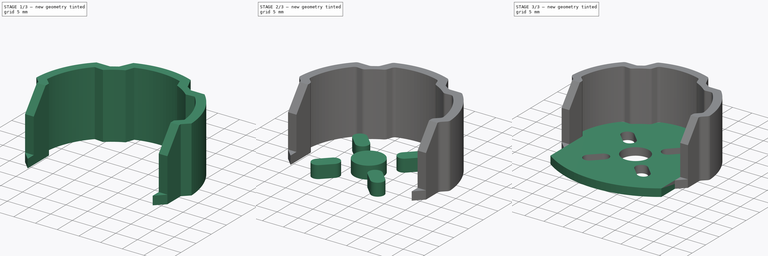
[diagram: build sequence overview — one tinted view per stage of 3, left to right]
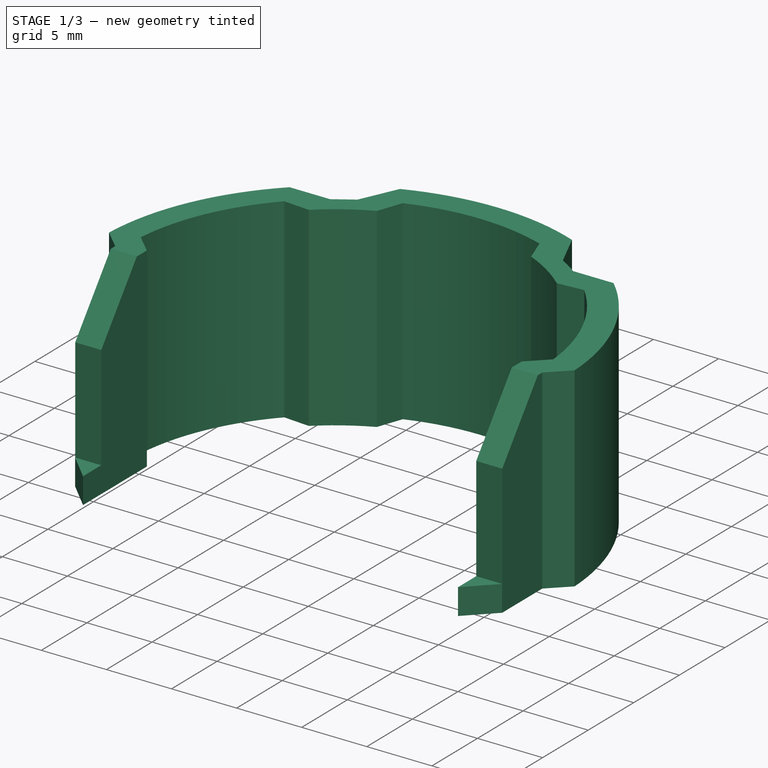
[diagram: stage 1 of 3 — iso view after this stage's code; geometry added in this stage tinted green]
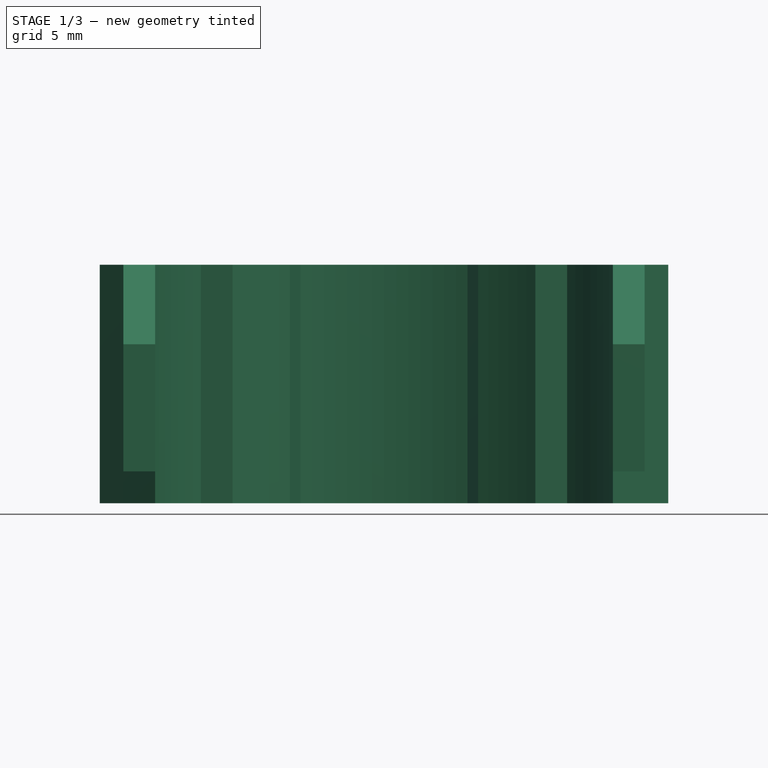
[diagram: stage 1 of 3 — front view after this stage's code; geometry added in this stage tinted green]
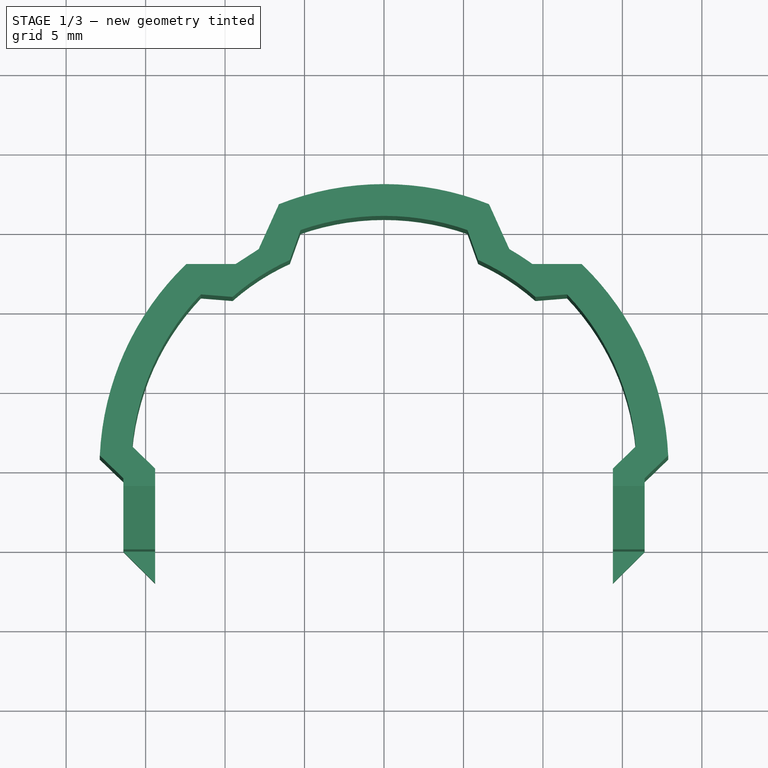
[diagram: stage 1 of 3 — top view after this stage's code; geometry added in this stage tinted green]
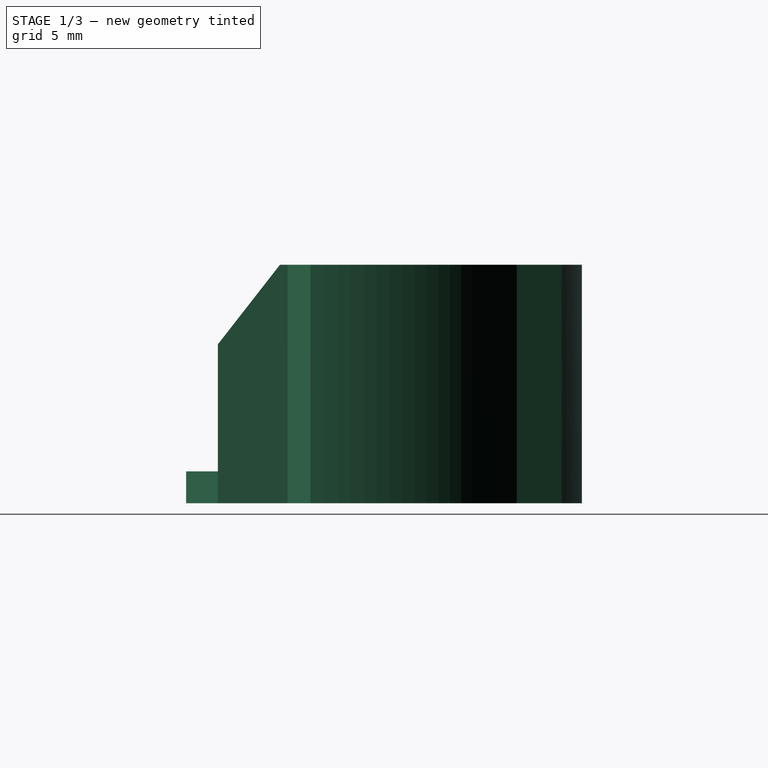
[diagram: stage 1 of 3 — right view after this stage's code; geometry added in this stage tinted green]
FCSTD DOCUMENT  (FreeCAD 0.15R4671 (Git))
Label: QAV250-Motor-Guard
License: All rights reserved
LicenseURL: http://en.wikipedia.org/wiki/All_rights_reserved
objects: Sketcher::SketchObject×4, PartDesign::Pad×4, Part::Cut×2, Part::Fillet×2
note: 16 computed .brp shape members not serialized (recipe doc carries the construction recipe); baked Part::Feature solids carry a one-line shape summary decoded from their .brp

FEATURE [Sketcher::SketchObject] Sketch002  label="Walls Taper Sketch"
  Placement = pos=(0,0,0) rot=(0.57735,0.57735,0.57735;2.0944rad)
  sketch-geometry (5):
    g0: LineSegment StartX=-8 StartY=2 StartZ=0 EndX=-5 EndY=2 EndZ=0
    g1: LineSegment StartX=-8 StartY=2 StartZ=0 EndX=-8 EndY=15 EndZ=0
    g2: LineSegment StartX=-8 StartY=15 StartZ=0 EndX=-1.1 EndY=15 EndZ=0
    g3: LineSegment StartX=-5 StartY=10 StartZ=0 EndX=-1.1 EndY=15 EndZ=0
    g4: LineSegment StartX=-5 StartY=10 StartZ=0 EndX=-5 EndY=2 EndZ=0
  constraints (15):
    c: Horizontal(g0)
    c: Vertical(g1)
    c: Coincident(g2,g1)
    c: Horizontal(g2)
    c: Coincident(g4,g3)
    c: Coincident(g4,g0)
    c: Vertical(g4)
    c: DistanceY(g-1,g0) = 2
    c: DistanceX(g0,g0) = 3
    c: DistanceX(g-1,g0) = -5
    c: Coincident(g2,g3)
    c: DistanceY(g1,g0) = -13
    c: DistanceX(g1,g2) = 6.9
    c: DistanceY(g0,g3) = 8
    c: Coincident(g0,g1)
FEATURE [PartDesign::Pad] Pad002  label="Walls Taper Pad"
  Length = 33
  Length2 = 100
  Midplane = true
  Placement = pos=(0,0,0) rot=(0.57735,0.57735,0.57735;2.0944rad)
  Sketch = -> Sketch002
  Type = 0
FEATURE [Sketcher::SketchObject] Sketch003  label="Walls"
  sketch-geometry (49):
    g0: LineSegment StartX=-14.4 StartY=-7 StartZ=0 EndX=-14.4 EndY=0 EndZ=0
    g1: LineSegment StartX=14.4 StartY=-7 StartZ=0 EndX=14.4 EndY=0 EndZ=0
    g2: ArcOfCircle [constr] CenterX=0 CenterY=0 CenterZ=0 NormalX=0 NormalY=0 NormalZ=1 Radius=14.4 StartAngle=0 EndAngle=3.14159
    g3: ArcOfCircle [constr] CenterX=0 CenterY=0 CenterZ=0 NormalX=0 NormalY=0 NormalZ=1 Radius=15.9 StartAngle=0 EndAngle=3.14159
    g4: LineSegment StartX=-11.5198 StartY=10.9592 StartZ=0 EndX=-9.5263 EndY=10.7986 EndZ=0
    g5: LineSegment StartX=-5.92373 StartY=13.1251 StartZ=0 EndX=-5.25 EndY=15.0082 EndZ=0
    g6: LineSegment StartX=5.25 StartY=15.0082 StartZ=0 EndX=5.92373 EndY=13.1251 EndZ=0
    g7: LineSegment StartX=11.5198 StartY=10.9592 StartZ=0 EndX=9.5263 EndY=10.7986 EndZ=0
    g8: LineSegment [constr] StartX=-9.5263 StartY=10.7986 StartZ=0 EndX=-5.92373 EndY=13.1251 EndZ=0
    g9: LineSegment [constr] StartX=5.92373 StartY=13.1251 StartZ=0 EndX=9.5263 EndY=10.7986 EndZ=0
    g10: ArcOfCircle CenterX=0 CenterY=0 CenterZ=0 NormalX=0 NormalY=0 NormalZ=1 Radius=15.9 StartAngle=2.38113 EndAngle=3.05414
    g11: ArcOfCircle CenterX=0 CenterY=0 CenterZ=0 NormalX=0 NormalY=0 NormalZ=1 Radius=14.4 StartAngle=1.99475 EndAngle=2.29368
    g12: ArcOfCircle CenterX=0 CenterY=0 CenterZ=0 NormalX=0 NormalY=0 NormalZ=1 Radius=15.9 StartAngle=1.23429 EndAngle=1.9073
    g13: ArcOfCircle CenterX=0 CenterY=0 CenterZ=0 NormalX=0 NormalY=0 NormalZ=1 Radius=14.4 StartAngle=0.847914 EndAngle=1.14684
    g14: ArcOfCircle CenterX=0 CenterY=0 CenterZ=0 NormalX=0 NormalY=0 NormalZ=1 Radius=15.9 StartAngle=0.0874536 EndAngle=0.760461
    g15: LineSegment StartX=14.4 StartY=0 StartZ=0 EndX=15.8392 EndY=1.38874 EndZ=0
    g16: LineSegment [constr] StartX=-14.4 StartY=0 StartZ=0 EndX=-15.9 EndY=0 EndZ=0
    g17: LineSegment [constr] StartX=14.4 StartY=0 StartZ=0 EndX=15.9 EndY=0 EndZ=0
    g18: LineSegment StartX=-15.8392 StartY=1.38874 StartZ=0 EndX=-14.4 EndY=0 EndZ=0
    g19: LineSegment [constr] StartX=-15.8392 StartY=1.38874 StartZ=0 EndX=-11.5198 EndY=10.9592 EndZ=0
    g20: LineSegment [constr] StartX=-5.25 StartY=15.0082 StartZ=0 EndX=5.25 EndY=15.0082 EndZ=0
    g21: LineSegment [constr] StartX=11.5198 StartY=10.9592 StartZ=0 EndX=15.8392 EndY=1.38874 EndZ=0
    g22: LineSegment [constr] StartX=-14.4 StartY=-7 StartZ=0 EndX=14.4 EndY=-7 EndZ=0
    g23: ArcOfCircle [constr] CenterX=0 CenterY=0 CenterZ=0 NormalX=0 NormalY=0 NormalZ=1 Radius=17.9 StartAngle=0 EndAngle=3.14159
    g24: LineSegment [constr] StartX=-15.9 StartY=0 StartZ=0 EndX=-17.9 EndY=0 EndZ=0
    g25: LineSegment [constr] StartX=15.9 StartY=0 StartZ=0 EndX=17.9 EndY=0 EndZ=0
    g26: LineSegment StartX=-14.4 StartY=-7 StartZ=0 EndX=-16.4 EndY=-5.01126 EndZ=0
    g27: LineSegment StartX=14.4 StartY=-7 StartZ=0 EndX=16.4 EndY=-5.01126 EndZ=0
    g28: ArcOfCircle CenterX=0 CenterY=0 CenterZ=0 NormalX=0 NormalY=0 NormalZ=1 Radius=17.9 StartAngle=2.3394 EndAngle=3.09587
    g29: ArcOfCircle CenterX=0 CenterY=0 CenterZ=0 NormalX=0 NormalY=0 NormalZ=1 Radius=17.9 StartAngle=1.19256 EndAngle=1.94904
    g30: ArcOfCircle CenterX=0 CenterY=0 CenterZ=0 NormalX=0 NormalY=0 NormalZ=1 Radius=17.9 StartAngle=0.0457179 EndAngle=0.802196
    g31: ArcOfCircle CenterX=0 CenterY=0 CenterZ=0 NormalX=0 NormalY=0 NormalZ=1 Radius=15.9 StartAngle=0.942977 EndAngle=1.05178
    g32: LineSegment StartX=-12.4428 StartY=12.868 StartZ=0 EndX=-9.33937 EndY=12.868 EndZ=0
    g33: LineSegment StartX=-7.88686 StartY=13.8061 StartZ=0 EndX=-6.6102 EndY=16.6348 EndZ=0
    g34: LineSegment StartX=6.6102 StartY=16.6348 StartZ=0 EndX=7.88686 EndY=13.8061 EndZ=0
    g35: LineSegment StartX=9.33937 StartY=12.868 StartZ=0 EndX=12.4428 EndY=12.868 EndZ=0
    g36: LineSegment [constr] StartX=-6.6102 StartY=16.6348 StartZ=0 EndX=6.6102 EndY=16.6348 EndZ=0
    g37: LineSegment [constr] StartX=-17.8813 StartY=0.818065 StartZ=0 EndX=-12.4428 EndY=12.868 EndZ=0
    g38: LineSegment [constr] StartX=12.4428 StartY=12.868 StartZ=0 EndX=17.8813 EndY=0.818065 EndZ=0
    g39: LineSegment StartX=-16.4 StartY=-5.01126 StartZ=0 EndX=-16.4 EndY=-0.61126 EndZ=0
    g40: LineSegment StartX=-16.4 StartY=-0.61126 StartZ=0 EndX=-17.8813 EndY=0.818065 EndZ=0
    g41: LineSegment StartX=17.8813 StartY=0.818065 StartZ=0 EndX=16.4 EndY=-0.61126 EndZ=0
    g42: LineSegment StartX=16.4 StartY=-5.01126 StartZ=0 EndX=16.4 EndY=-0.61126 EndZ=0
    g43: LineSegment StartX=-9.33937 StartY=12.868 StartZ=0 EndX=-7.88686 EndY=13.8061 EndZ=0
    g44: LineSegment [constr] StartX=7.88686 StartY=13.8061 StartZ=0 EndX=9.33937 EndY=12.868 EndZ=0
    g45: LineSegment [constr] StartX=-9.5263 StartY=10.7986 StartZ=0 EndX=-9.33937 EndY=12.868 EndZ=0
    g46: LineSegment [constr] StartX=-7.88686 StartY=13.8061 StartZ=0 EndX=-5.92373 EndY=13.1251 EndZ=0
    g47: LineSegment [constr] StartX=5.92373 StartY=13.1251 StartZ=0 EndX=7.88686 EndY=13.8061 EndZ=0
    g48: LineSegment [constr] StartX=9.33937 StartY=12.868 StartZ=0 EndX=9.5263 EndY=10.7986 EndZ=0
  constraints (159):
    c: Vertical(g0)
    c: Vertical(g1)
    c: Equal(g0,g1)
    c: Coincident(g2,g0)
    c: Coincident(g2,g1)
    c: PointOnObject(g18,g3)
    c: PointOnObject(g4,g3)
    c: PointOnObject(g4,g2)
    c: PointOnObject(g5,g2)
    c: PointOnObject(g5,g3)
    c: PointOnObject(g6,g3)
    c: PointOnObject(g6,g2)
    c: PointOnObject(g7,g3)
    c: PointOnObject(g14,g3)
    c: PointOnObject(g7,g2)
    c: Equal(g5,g6)
    c: Equal(g6,g7)
    c: Coincident(g8,g4)
    c: Coincident(g8,g5)
    c: Coincident(g9,g6)
    c: Coincident(g9,g7)
    c: Coincident(g11,g4)
    c: Coincident(g11,g5)
    c: Coincident(g12,g5)
    c: Coincident(g13,g6)
    c: Coincident(g13,g7)
    c: PointOnObject(g15,g2)
    c: Equal(g15,g7)
    c: Equal(g7,g4)
    c: Horizontal(g16)
    c: Horizontal(g17)
    c: DistanceY(g-1,g15) = 0
    c: Coincident(g1,g15)
    c: Coincident(g1,g17)
    c: Coincident(g3,g17)
    c: Coincident(g3,g16)
    c: Coincident(g0,g16)
    c: Coincident(g0,g18)
    c: DistanceX(g0,g3) = -1.5
    c: Equal(g16,g17)
    c: DistanceY(g0,g0) = 7
    c: DistanceX(g5,g6) = 10.5
    c: Equal(g10,g14)
    c: Equal(g14,g12)
    c: DistanceX(g-1,g1) = 14.4
    c: Coincident(g4,g10)
    c: Coincident(g7,g14)
    c: Coincident(g14,g15)
    c: Coincident(g12,g6)
    c: Equal(g4,g18)
    c: Equal(g18,g5)
    c: Equal(g5,g6)
    c: Equal(g6,g7)
    c: Equal(g7,g15)
    c: Distance(g4) = 2
    c: Coincident(g10,g18)
    c: Coincident(g19,g10)
    c: Coincident(g4,g19)
    c: Coincident(g20,g5)
    c: Coincident(g20,g6)
    c: Horizontal(g20)
    c: Coincident(g21,g7)
    c: Coincident(g21,g14)
    c: Equal(g21,g19)
    c: Equal(g19,g20)
    c: Coincident(g22,g0)
    c: Coincident(g22,g1)
    c: Horizontal(g22)
    c: Coincident(g2,g3)
    c: Coincident(g2,g10)
    c: Coincident(g2,g11)
    c: Coincident(g2,g12)
    c: Coincident(g2,g13)
    c: Coincident(g2,g14)
    c: Equal(g20,g19)
    c: Equal(g19,g21)
    c: PointOnObject(g23,g-1)
    c: Coincident(g23,g-1)
    c: Coincident(g24,g3)
    c: Horizontal(g24)
    c: Coincident(g24,g23)
    c: Distance(g24) = 2
    c: Coincident(g25,g3)
    c: Coincident(g25,g23)
    c: Horizontal(g25)
    c: Coincident(g27,g1)
    c: Equal(g26,g27)
    c: Coincident(g0,g26)
    c: DistanceX(g0,g26) = -2
    c: Coincident(g28,g-1)
    c: PointOnObject(g28,g23)
    c: PointOnObject(g29,g23)
    c: Coincident(g30,g-1)
    c: PointOnObject(g30,g23)
    c: Coincident(g2,g23)
    c: Coincident(g2,g29)
    c: Coincident(g31,g-1)
    c: PointOnObject(g31,g3)
    c: Coincident(g32,g28)
    c: Coincident(g33,g29)
    c: Coincident(g34,g31)
    c: Coincident(g29,g34)
    c: Coincident(g35,g30)
    c: Horizontal(g35)
    c: Coincident(g31,g35)
    c: Coincident(g36,g29)
    c: Coincident(g36,g29)
    c: Horizontal(g36)
    c: Coincident(g37,g28)
    c: Coincident(g37,g28)
    c: Coincident(g38,g30)
    c: Coincident(g38,g30)
    c: Equal(g37,g36)
    c: Equal(g36,g38)
    c: Coincident(g39,g26)
    c: Vertical(g39)
    c: DistanceY(g39,g10) = 2
    c: Coincident(g40,g39)
    c: Coincident(g40,g28)
    c: Coincident(g42,g27)
    c: Coincident(g42,g41)
    c: Vertical(g42)
    c: DistanceY(g14,g41) = -2
    c: Parallel(g40,g18)
    c: Parallel(g15,g41)
    c: DistanceX(g27,g1) = -2
    c: Coincident(g41,g30)
    c: Coincident(g44,g31)
    c: Coincident(g44,g31)
    c: Coincident(g45,g4)
    c: Coincident(g46,g5)
    c: Coincident(g47,g6)
    c: Coincident(g47,g31)
    c: Coincident(g48,g31)
    c: Equal(g45,g46)
    c: Equal(g46,g47)
    c: Equal(g47,g48)
    c: Equal(g32,g33)
    c: Equal(g33,g34)
    c: Equal(g34,g35)
    c: Equal(g45,g46)
    c: Equal(g46,g47)
    c: Equal(g47,g48)
    c: Equal(g32,g33)
    c: Equal(g33,g34)
    c: Equal(g34,g35)
    c: Coincident(g7,g48)
    c: Equal(g40,g41)
    c: Equal(g27,g26)
    c: Equal(g45,g46)
    c: Equal(g46,g47)
    c: Equal(g47,g48)
    c: Coincident(g32,g43)
    c: Coincident(g32,g45)
    c: Coincident(g33,g43)
    c: Coincident(g33,g46)
    c: PointOnObject(g32,g3)
    c: PointOnObject(g33,g3)
    c: Distance(g39) = 4.4
FEATURE [PartDesign::Pad] Pad003  label="Walls Pad"
  Length = 15
  Length2 = 100
  Sketch = -> Sketch003
  Type = 0
FEATURE [Part::Cut] Cut  label="Walls Cut"
  Base = -> Pad003
  Tool = -> Pad002
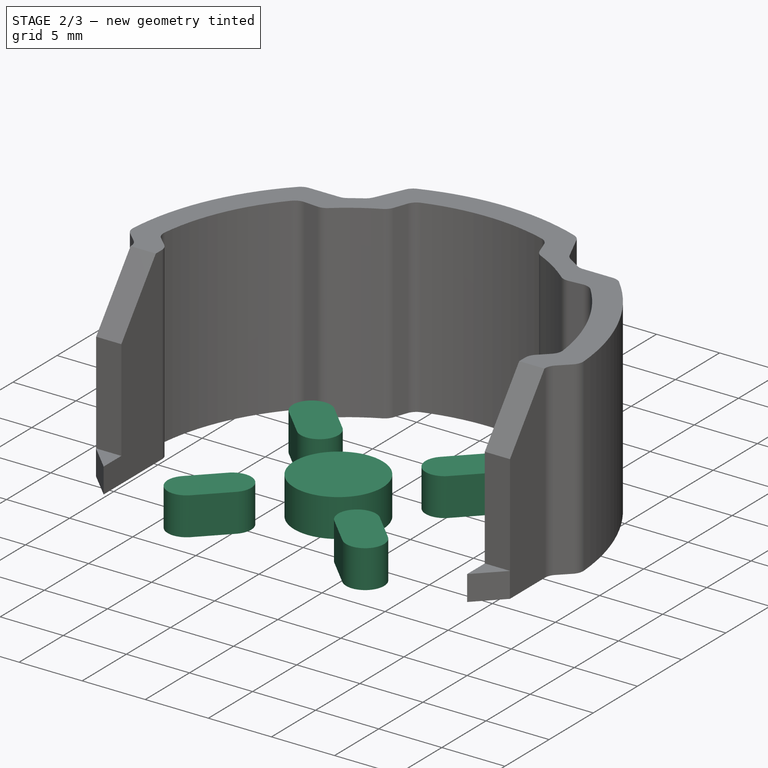
[diagram: stage 2 of 3 — iso view after this stage's code; geometry added in this stage tinted green]
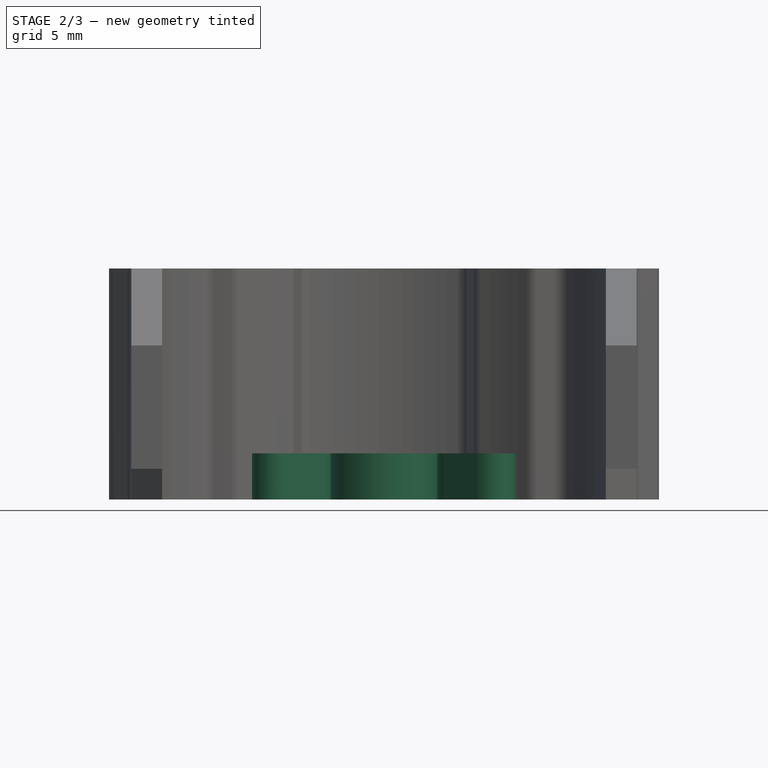
[diagram: stage 2 of 3 — front view after this stage's code; geometry added in this stage tinted green]
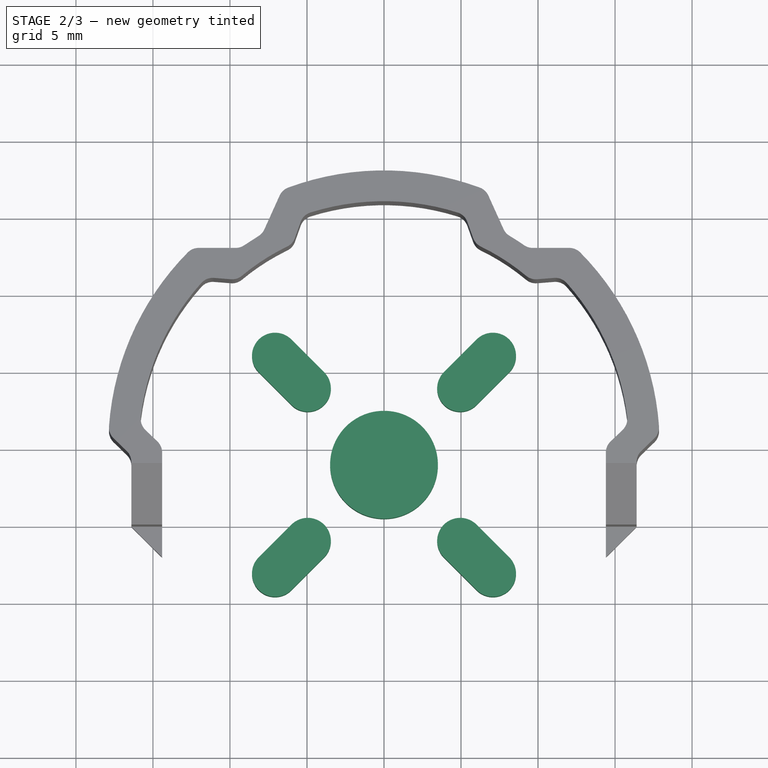
[diagram: stage 2 of 3 — top view after this stage's code; geometry added in this stage tinted green]
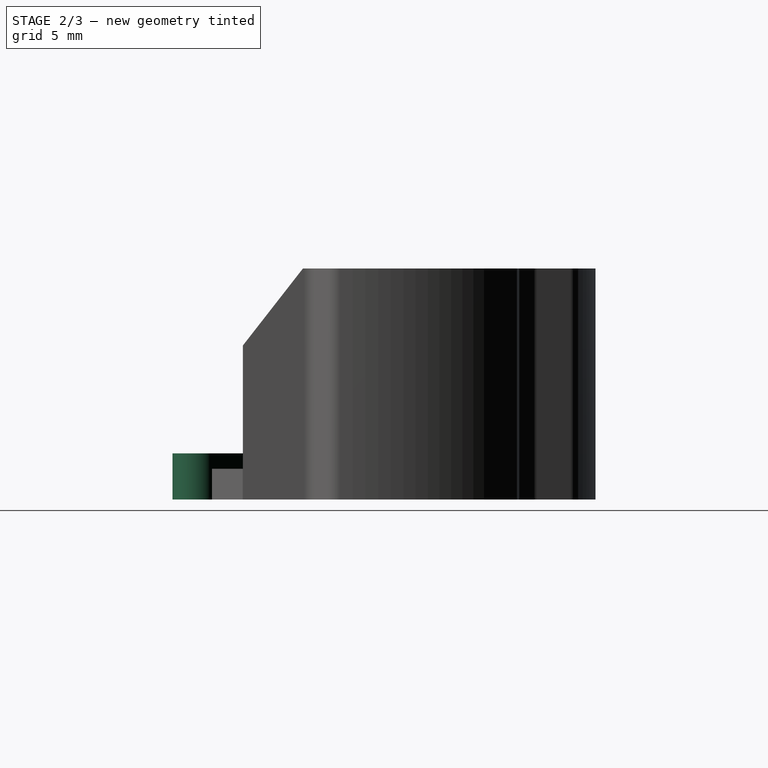
[diagram: stage 2 of 3 — right view after this stage's code; geometry added in this stage tinted green]
FEATURE [Sketcher::SketchObject] Sketch  label="Holes"
  sketch-geometry (48):
    g0: LineSegment StartX=-6.01041 StartY=-4.88909 StartZ=0 EndX=-8.13173 EndY=-7.01041 EndZ=0
    g1: LineSegment StartX=-3.88909 StartY=-7.01041 StartZ=0 EndX=-6.01041 EndY=-9.13173 EndZ=0
    g2: LineSegment [constr] StartX=-8.13173 StartY=-7.01041 StartZ=0 EndX=-6.01041 EndY=-9.13173 EndZ=0
    g3: ArcOfCircle CenterX=-4.94975 CenterY=-5.94975 CenterZ=0 NormalX=0 NormalY=0 NormalZ=1 Radius=1.5 StartAngle=5.49779 EndAngle=8.63938
    g4: ArcOfCircle CenterX=-7.07107 CenterY=-8.07107 CenterZ=0 NormalX=0 NormalY=0 NormalZ=1 Radius=1.5 StartAngle=2.35619 EndAngle=5.49779
    g5: LineSegment [constr] StartX=6.01041 StartY=7.13173 StartZ=0 EndX=8.13173 EndY=5.01041 EndZ=0
    g6: LineSegment [constr] StartX=-8.13173 StartY=5.01041 StartZ=0 EndX=-6.01041 EndY=7.13173 EndZ=0
    g7: LineSegment StartX=3.88909 StartY=-7.01041 StartZ=0 EndX=6.01041 EndY=-9.13173 EndZ=0
    g8: LineSegment StartX=6.01041 StartY=-4.88909 StartZ=0 EndX=8.13173 EndY=-7.01041 EndZ=0
    g9: LineSegment StartX=6.01041 StartY=2.88909 StartZ=0 EndX=8.13173 EndY=5.01041 EndZ=0
    g10: LineSegment StartX=3.88909 StartY=5.01041 StartZ=0 EndX=6.01041 EndY=7.13173 EndZ=0
    g11: LineSegment StartX=-8.13173 StartY=5.01041 StartZ=0 EndX=-6.01041 EndY=2.88909 EndZ=0
    g12: LineSegment StartX=-6.01041 StartY=7.13173 StartZ=0 EndX=-3.88909 EndY=5.01041 EndZ=0
    g13: ArcOfCircle CenterX=4.94975 CenterY=-5.94975 CenterZ=0 NormalX=0 NormalY=0 NormalZ=1 Radius=1.5 StartAngle=0.785398 EndAngle=3.92699
    g14: ArcOfCircle CenterX=7.07107 CenterY=-8.07107 CenterZ=0 NormalX=0 NormalY=0 NormalZ=1 Radius=1.5 StartAngle=3.92699 EndAngle=7.06858
    g15: ArcOfCircle CenterX=7.07107 CenterY=6.07107 CenterZ=0 NormalX=0 NormalY=0 NormalZ=1 Radius=1.5 StartAngle=5.49779 EndAngle=8.63938
    g16: ArcOfCircle CenterX=4.94975 CenterY=3.94975 CenterZ=0 NormalX=0 NormalY=0 NormalZ=1 Radius=1.5 StartAngle=2.35619 EndAngle=5.49779
    g17: ArcOfCircle CenterX=-4.94975 CenterY=3.94975 CenterZ=0 NormalX=0 NormalY=0 NormalZ=1 Radius=1.5 StartAngle=3.92699 EndAngle=7.06858
    g18: ArcOfCircle CenterX=-7.07107 CenterY=6.07107 CenterZ=0 NormalX=0 NormalY=0 NormalZ=1 Radius=1.5 StartAngle=0.785398 EndAngle=3.92699
    g19: LineSegment [constr] StartX=8.13173 StartY=-7.01041 StartZ=0 EndX=6.01041 EndY=-9.13173 EndZ=0
    g20: LineSegment [constr] StartX=-8.13173 StartY=7.13173 StartZ=0 EndX=8.13173 EndY=-9.13173 EndZ=0
    g21: LineSegment [constr] StartX=-8.13173 StartY=-9.13173 StartZ=0 EndX=8.13173 EndY=7.13173 EndZ=0
    g22: GeomPoint [constr] X=-3.88909 Y=2.88909 Z=0
    g23: GeomPoint [constr] X=3.88909 Y=2.88909 Z=0
    g24: GeomPoint [constr] X=3.88909 Y=-4.88909 Z=0
    g25: GeomPoint [constr] X=-3.88909 Y=-4.88909 Z=0
    g26: LineSegment [constr] StartX=-8.13173 StartY=-9.13173 StartZ=0 EndX=8.13173 EndY=-9.13173 EndZ=0
    g27: LineSegment [constr] StartX=-8.13173 StartY=-9.13173 StartZ=0 EndX=-8.13173 EndY=7.13173 EndZ=0
    g28: LineSegment [constr] StartX=-8.13173 StartY=7.13173 StartZ=0 EndX=8.13173 EndY=7.13173 EndZ=0
    g29: LineSegment [constr] StartX=8.13173 StartY=7.13173 StartZ=0 EndX=8.13173 EndY=-9.13173 EndZ=0
    g30: LineSegment [constr] StartX=-6.01041 StartY=-4.88909 StartZ=0 EndX=-3.88909 EndY=-7.01041 EndZ=0
    g31: LineSegment [constr] StartX=3.88909 StartY=-7.01041 StartZ=0 EndX=6.01041 EndY=-4.88909 EndZ=0
    g32: LineSegment [constr] StartX=-6.01041 StartY=2.88909 StartZ=0 EndX=-3.88909 EndY=5.01041 EndZ=0
    g33: LineSegment [constr] StartX=3.88909 StartY=5.01041 StartZ=0 EndX=6.01041 EndY=2.88909 EndZ=0
    g34: LineSegment [constr] StartX=-3.88909 StartY=-4.88909 StartZ=0 EndX=-3.88909 EndY=-9.13173 EndZ=0
    g35: LineSegment [constr] StartX=-3.88909 StartY=-4.88909 StartZ=0 EndX=-8.13173 EndY=-4.88909 EndZ=0
    g36: LineSegment [constr] StartX=-8.13173 StartY=-9.13173 StartZ=0 EndX=-3.88909 EndY=-4.88909 EndZ=0
    g37: LineSegment [constr] StartX=3.88909 StartY=-4.88909 StartZ=0 EndX=3.88909 EndY=-9.13173 EndZ=0
    g38: LineSegment [constr] StartX=3.88909 StartY=-4.88909 StartZ=0 EndX=8.13173 EndY=-4.88909 EndZ=0
    g39: LineSegment [constr] StartX=-3.88909 StartY=2.88909 StartZ=0 EndX=-8.13173 EndY=2.88909 EndZ=0
    g40: LineSegment [constr] StartX=-3.88909 StartY=2.88909 StartZ=0 EndX=-3.88909 EndY=7.13173 EndZ=0
    g41: LineSegment [constr] StartX=3.88909 StartY=2.88909 StartZ=0 EndX=3.88909 EndY=7.13173 EndZ=0
    g42: LineSegment [constr] StartX=3.88909 StartY=2.88909 StartZ=0 EndX=8.13173 EndY=2.88909 EndZ=0
    g43: LineSegment [constr] StartX=8.13173 StartY=-9.13173 StartZ=0 EndX=3.88909 EndY=-4.88909 EndZ=0
    g44: LineSegment [constr] StartX=8.13173 StartY=7.13173 StartZ=0 EndX=3.88909 EndY=2.88909 EndZ=0
    g45: LineSegment [constr] StartX=-8.13173 StartY=7.13173 StartZ=0 EndX=-3.88909 EndY=2.88909 EndZ=0
    g46: GeomPoint [constr] X=2.01635e-06 Y=-0.999998 Z=0
    g47: Circle CenterX=2.01635e-06 CenterY=-0.999998 CenterZ=0 NormalX=0 NormalY=0 NormalZ=1 Radius=3.5
  constraints (132):
    c: Coincident(g19,g8)
    c: Coincident(g19,g7)
    c: Coincident(g14,g7)
    c: Coincident(g1,g2)
    c: Coincident(g1,g4)
    c: Coincident(g0,g2)
    c: Coincident(g0,g4)
    c: Coincident(g3,g1)
    c: Coincident(g3,g0)
    c: Coincident(g8,g14)
    c: PointOnObject(g14,g19)
    c: Coincident(g11,g18)
    c: Coincident(g11,g6)
    c: Coincident(g6,g12)
    c: Coincident(g18,g6)
    c: Coincident(g9,g5)
    c: Coincident(g5,g10)
    c: Coincident(g15,g5)
    c: Coincident(g15,g5)
    c: PointOnObject(g15,g5)
    c: PointOnObject(g4,g2)
    c: Distance(g19) = 3
    c: PointOnObject(g20,g14)
    c: PointOnObject(g21,g15)
    c: PointOnObject(g21,g4)
    c: PointOnObject(g20,g18)
    c: PointOnObject(g4,g21)
    c: PointOnObject(g3,g21)
    c: PointOnObject(g15,g21)
    c: PointOnObject(g16,g21)
    c: PointOnObject(g13,g20)
    c: PointOnObject(g14,g20)
    c: PointOnObject(g18,g6)
    c: Angle(g21,g20) = 1.5708
    c: Distance(g21) = 23
    c: PointOnObject(g22,g17)
    c: PointOnObject(g23,g16)
    c: PointOnObject(g24,g13)
    c: PointOnObject(g25,g3)
    c: Equal(g21,g20)
    c: PointOnObject(g18,g20)
    c: PointOnObject(g17,g20)
    c: PointOnObject(g24,g20)
    c: PointOnObject(g25,g21)
    c: Coincident(g26,g21)
    c: Coincident(g26,g20)
    c: Horizontal(g26)
    c: Coincident(g27,g21)
    c: Coincident(g27,g20)
    c: Coincident(g28,g20)
    c: Horizontal(g28)
    c: Coincident(g28,g21)
    c: Coincident(g29,g21)
    c: Coincident(g29,g20)
    c: PointOnObject(g7,g26)
    c: PointOnObject(g8,g29)
    c: PointOnObject(g0,g27)
    c: PointOnObject(g6,g27)
    c: Parallel(g1,g0)
    c: Parallel(g7,g8)
    c: Parallel(g9,g10)
    c: Parallel(g12,g11)
    c: Equal(g2,g19)
    c: Equal(g19,g5)
    c: Equal(g5,g6)
    c: Coincident(g30,g0)
    c: Coincident(g30,g1)
    c: Parallel(g30,g2)
    c: PointOnObject(g3,g30)
    c: Coincident(g31,g7)
    c: Coincident(g31,g8)
    c: Coincident(g8,g13)
    c: Coincident(g7,g13)
    c: Parallel(g31,g19)
    c: PointOnObject(g13,g31)
    c: Coincident(g32,g11)
    c: Coincident(g32,g12)
    c: PointOnObject(g17,g32)
    c: Coincident(g17,g11)
    c: Coincident(g12,g17)
    c: Parallel(g6,g32)
    c: Coincident(g33,g10)
    c: Coincident(g33,g9)
    c: Coincident(g9,g16)
    c: Coincident(g10,g16)
    c: PointOnObject(g16,g33)
    c: Parallel(g33,g5)
    c: Coincident(g34,g25)
    c: PointOnObject(g34,g26)
    c: Vertical(g34)
    c: Coincident(g35,g25)
    c: PointOnObject(g35,g27)
    c: Horizontal(g35)
    c: Coincident(g36,g21)
    c: Coincident(g36,g25)
    c: Distance(g36) = 6
    c: Coincident(g37,g24)
    c: PointOnObject(g37,g26)
    c: Vertical(g37)
    c: Coincident(g38,g24)
    c: PointOnObject(g38,g29)
    c: Horizontal(g38)
    c: Coincident(g39,g22)
    c: PointOnObject(g39,g27)
    c: Horizontal(g39)
    c: Coincident(g40,g22)
    c: Vertical(g40)
    c: PointOnObject(g40,g28)
    c: Coincident(g41,g23)
    c: PointOnObject(g41,g28)
    c: Vertical(g41)
    c: Coincident(g42,g23)
    c: Horizontal(g42)
    c: PointOnObject(g42,g29)
    c: Coincident(g43,g20)
    c: Coincident(g43,g24)
    c: Coincident(g44,g21)
    c: Coincident(g44,g23)
    c: Coincident(g45,g20)
    c: Coincident(g45,g22)
    c: Equal(g36,g43)
    c: Equal(g43,g44)
    c: Equal(g44,g45)
    c: PointOnObject(g22,g20)
    c: PointOnObject(g9,g42)
    c: PointOnObject(g23,g21)
    c: DistanceY(g-1,g20) = 7.13173
    c: DistanceX(g-1,g20) = 8.13173
    c: PointOnObject(g46,g21)
    c: PointOnObject(g46,g20)
    c: Radius(g47) = 3.5
    c: Coincident(g46,g47)
FEATURE [PartDesign::Pad] Pad004  label="Holes Pad"
  Length = 3
  Length2 = 100
  Sketch = -> Sketch
  Type = 0
FEATURE [Part::Fillet] Fillet
  Base = -> Cut
  Edges = 24 edges r=1: [Edge2,Edge35,Edge70,Edge71,Edge72,Edge73,Edge74,Edge75,Edge76,Edge77,Edge78,Edge79,Edge86,Edge90,Edge91,Edge92,Edge93,Edge94,Edge95,Edge96,Edge97,Edge98,Edge99,Edge100]
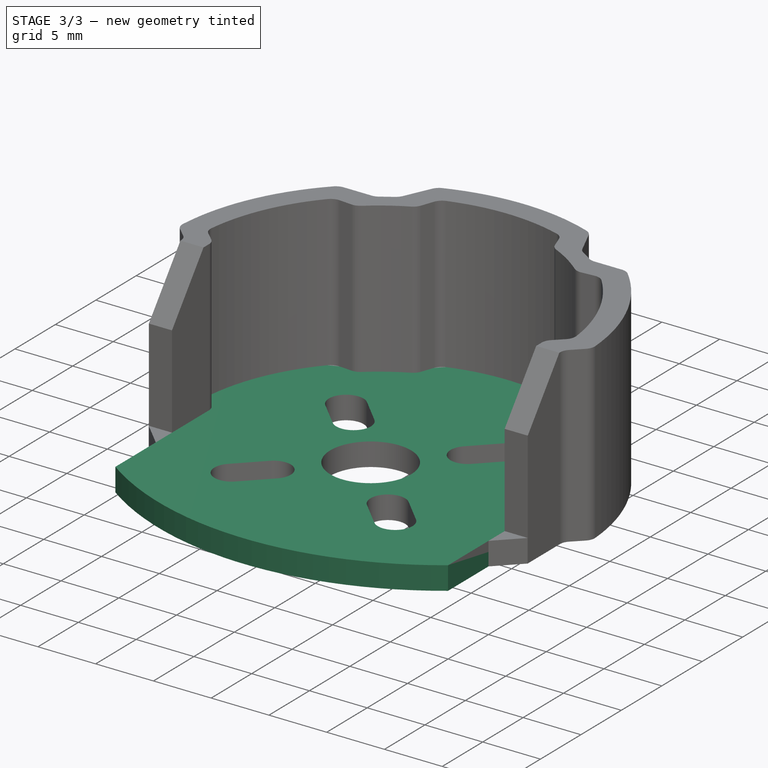
[diagram: stage 3 of 3 — iso view after this stage's code; geometry added in this stage tinted green]
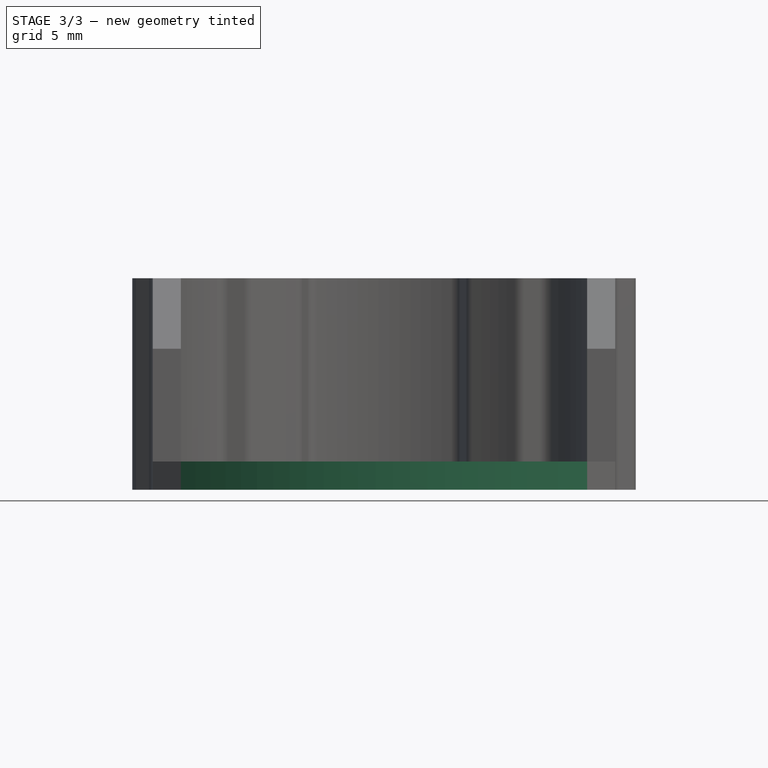
[diagram: stage 3 of 3 — front view after this stage's code; geometry added in this stage tinted green]
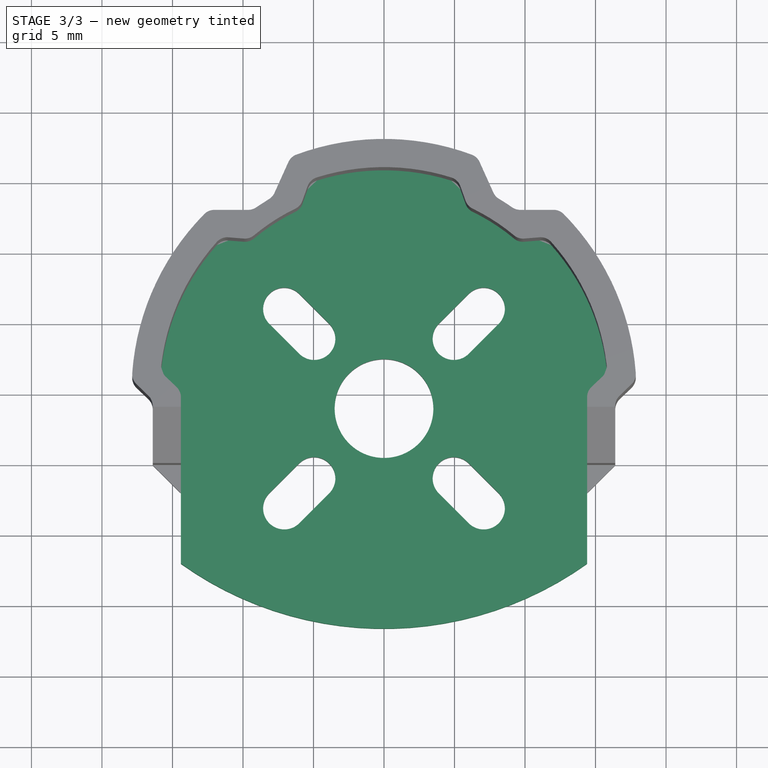
[diagram: stage 3 of 3 — top view after this stage's code; geometry added in this stage tinted green]
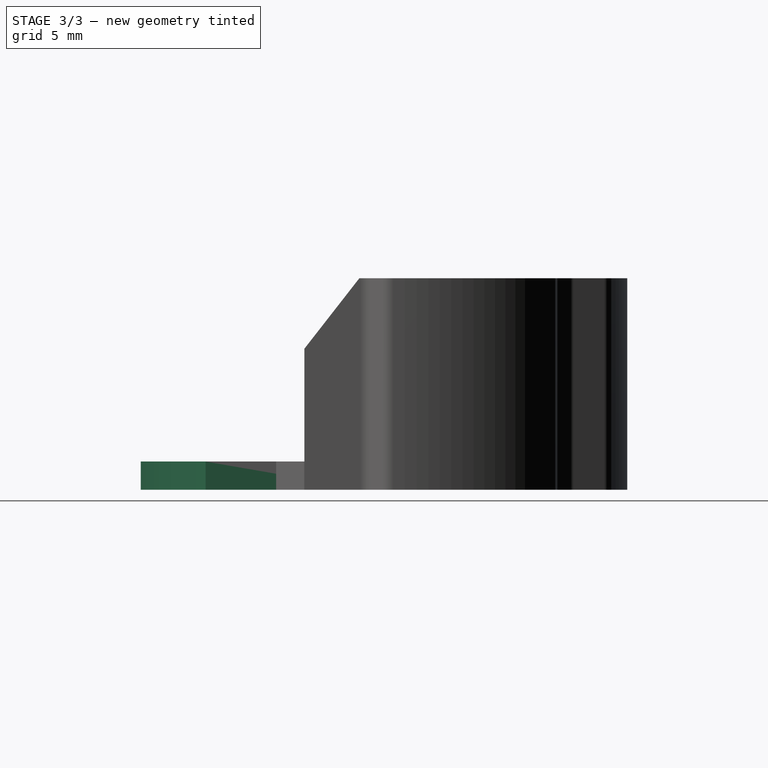
[diagram: stage 3 of 3 — right view after this stage's code; geometry added in this stage tinted green]
FEATURE [Sketcher::SketchObject] Sketch001  label="Base"
  sketch-geometry (25):
    g0: ArcOfCircle CenterX=0 CenterY=8.19891 CenterZ=0 NormalX=0 NormalY=0 NormalZ=1 Radius=24.8064 StartAngle=4.09305 EndAngle=5.33173
    g1: LineSegment StartX=-14.4 StartY=-12 StartZ=0 EndX=-14.4 EndY=0 EndZ=0
    g2: LineSegment StartX=14.4 StartY=-12 StartZ=0 EndX=14.4 EndY=0 EndZ=0
    g3: ArcOfCircle [constr] CenterX=0 CenterY=0 CenterZ=0 NormalX=0 NormalY=0 NormalZ=1 Radius=15.9 StartAngle=0 EndAngle=3.14159
    g4: LineSegment StartX=-11.5198 StartY=10.9592 StartZ=0 EndX=-9.5263 EndY=10.7986 EndZ=0
    g5: LineSegment StartX=-5.92373 StartY=13.1251 StartZ=0 EndX=-5.25 EndY=15.0082 EndZ=0
    g6: LineSegment StartX=5.25 StartY=15.0082 StartZ=0 EndX=5.92373 EndY=13.1251 EndZ=0
    g7: LineSegment StartX=11.5198 StartY=10.9592 StartZ=0 EndX=9.5263 EndY=10.7986 EndZ=0
    g8: LineSegment [constr] StartX=-9.5263 StartY=10.7986 StartZ=0 EndX=-5.92373 EndY=13.1251 EndZ=0
    g9: LineSegment [constr] StartX=5.92373 StartY=13.1251 StartZ=0 EndX=9.5263 EndY=10.7986 EndZ=0
    g10: ArcOfCircle CenterX=0 CenterY=0 CenterZ=0 NormalX=0 NormalY=0 NormalZ=1 Radius=15.9 StartAngle=2.38113 EndAngle=3.05414
    g11: ArcOfCircle CenterX=0 CenterY=0 CenterZ=0 NormalX=0 NormalY=0 NormalZ=1 Radius=14.4 StartAngle=1.99475 EndAngle=2.29368
    g12: ArcOfCircle CenterX=0 CenterY=0 CenterZ=0 NormalX=0 NormalY=0 NormalZ=1 Radius=15.9 StartAngle=1.23429 EndAngle=1.9073
    g13: ArcOfCircle CenterX=0 CenterY=0 CenterZ=0 NormalX=0 NormalY=0 NormalZ=1 Radius=14.4 StartAngle=0.847914 EndAngle=1.14684
    g14: ArcOfCircle CenterX=0 CenterY=0 CenterZ=0 NormalX=0 NormalY=0 NormalZ=1 Radius=15.9 StartAngle=0.0874536 EndAngle=0.760461
    g15: LineSegment StartX=14.4 StartY=0 StartZ=0 EndX=15.8392 EndY=1.38874 EndZ=0
    g16: LineSegment [constr] StartX=-14.4 StartY=0 StartZ=0 EndX=-15.9 EndY=0 EndZ=0
    g17: LineSegment [constr] StartX=14.4 StartY=0 StartZ=0 EndX=15.9 EndY=0 EndZ=0
    g18: LineSegment StartX=-15.8392 StartY=1.38874 StartZ=0 EndX=-14.4 EndY=0 EndZ=0
    g19: LineSegment [constr] StartX=-15.8392 StartY=1.38874 StartZ=0 EndX=-11.5198 EndY=10.9592 EndZ=0
    g20: LineSegment [constr] StartX=-5.25 StartY=15.0082 StartZ=0 EndX=5.25 EndY=15.0082 EndZ=0
    g21: LineSegment [constr] StartX=11.5198 StartY=10.9592 StartZ=0 EndX=15.8392 EndY=1.38874 EndZ=0
    g22: LineSegment [constr] StartX=-14.4 StartY=-12 StartZ=0 EndX=14.4 EndY=-12 EndZ=0
    g23: LineSegment [constr] StartX=-14.4 StartY=0 StartZ=0 EndX=14.4 EndY=0 EndZ=0
    g24: ArcOfCircle [constr] CenterX=0 CenterY=0 CenterZ=0 NormalX=0 NormalY=0 NormalZ=1 Radius=14.4 StartAngle=0 EndAngle=3.14159
  constraints (79):
    c: Coincident(g1,g0)
    c: Vertical(g1)
    c: Coincident(g2,g0)
    c: Vertical(g2)
    c: Equal(g1,g2)
    c: PointOnObject(g18,g3)
    c: PointOnObject(g4,g3)
    c: PointOnObject(g5,g3)
    c: PointOnObject(g6,g3)
    c: PointOnObject(g7,g3)
    c: PointOnObject(g14,g3)
    c: Equal(g5,g6)
    c: Equal(g6,g7)
    c: Coincident(g8,g4)
    c: Coincident(g8,g5)
    c: Coincident(g9,g6)
    c: Coincident(g9,g7)
    c: Coincident(g11,g4)
    c: Coincident(g11,g5)
    c: Coincident(g12,g5)
    c: Coincident(g13,g6)
    c: Coincident(g13,g7)
    c: Equal(g15,g7)
    c: Equal(g7,g4)
    c: Horizontal(g16)
    c: Horizontal(g17)
    c: Coincident(g2,g15)
    c: Coincident(g2,g17)
    c: Coincident(g3,g17)
    c: Coincident(g3,g16)
    c: Coincident(g1,g16)
    c: Coincident(g1,g18)
    c: DistanceX(g1,g3) = -1.5
    c: Equal(g16,g17)
    c: DistanceY(g0,g1) = 12
    c: DistanceX(g5,g6) = 10.5
    c: Equal(g10,g14)
    c: Equal(g14,g12)
    c: DistanceX(g-1,g2) = 14.4
    c: Coincident(g4,g10)
    c: Coincident(g7,g14)
    c: Coincident(g14,g15)
    c: Coincident(g12,g6)
    c: Equal(g4,g18)
    c: Equal(g18,g5)
    c: Equal(g5,g6)
    c: Equal(g6,g7)
    c: Equal(g7,g15)
    c: Distance(g4) = 2
    c: Coincident(g10,g18)
    c: Coincident(g19,g10)
    c: Coincident(g4,g19)
    c: Coincident(g20,g5)
    c: Coincident(g20,g6)
    c: Horizontal(g20)
    c: Coincident(g21,g7)
    c: Coincident(g21,g14)
    c: Equal(g21,g19)
    c: Equal(g19,g20)
    c: Equal(g2,g1)
    c: Coincident(g22,g0)
    c: Horizontal(g22)
    c: Coincident(g22,g0)
    c: Coincident(g23,g1)
    c: Coincident(g23,g2)
    c: Horizontal(g23)
    c: PointOnObject(g3,g23)
    c: Coincident(g10,g3)
    c: PointOnObject(g3,g-2)
    c: Coincident(g24,g3)
    c: Coincident(g24,g1)
    c: Coincident(g24,g2)
    c: PointOnObject(g5,g24)
    c: PointOnObject(g4,g24)
    c: PointOnObject(g6,g24)
    c: PointOnObject(g7,g24)
    c: Coincident(g11,g3)
    c: Coincident(g13,g3)
    c: DistanceY(g-1,g3) = 0
FEATURE [PartDesign::Pad] Pad  label="Base Pad"
  Length = 2
  Length2 = 100
  Sketch = -> Sketch001
  Type = 0
FEATURE [Part::Fillet] Fillet001  label="Base Fillet"
  Base = -> Pad
  Edges = 12 edges r=1: [Edge1,Edge2,Edge5,Edge14,Edge17,Edge20,Edge23,Edge26,Edge29,Edge32,Edge35,Edge38]
FEATURE [Part::Cut] Cut001  label="Base Cut"
  Base = -> Fillet001
  Tool = -> Pad004
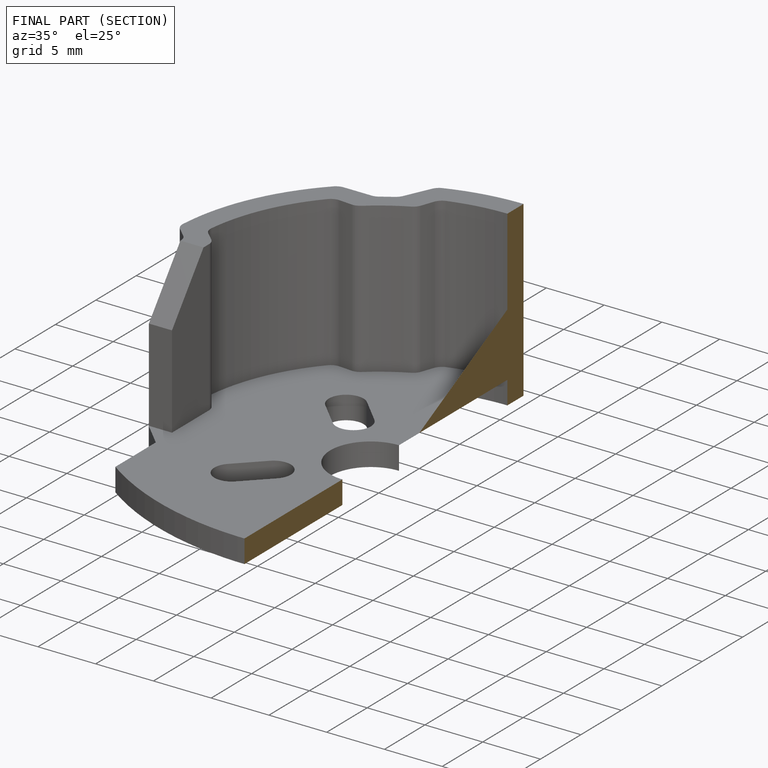
[diagram: finished part — half-section view (interior)]
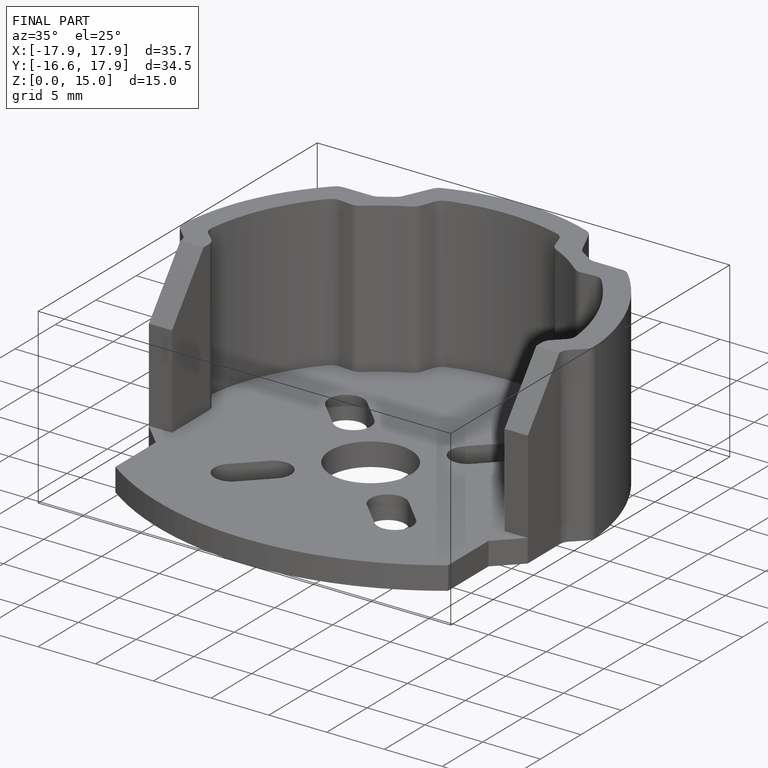
[diagram: finished part — iso view with bounding-box wireframe]
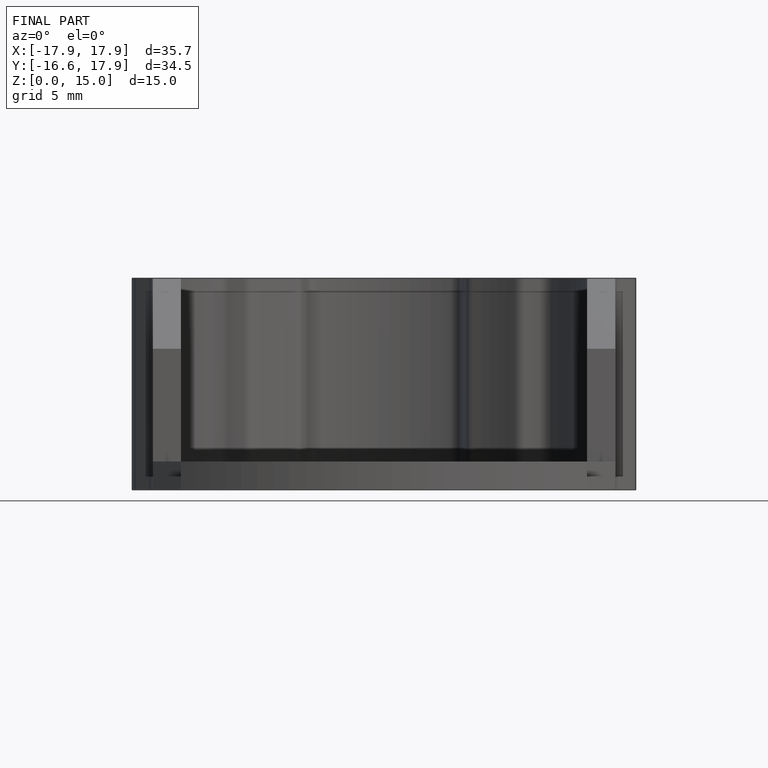
[diagram: finished part — front view with bounding-box wireframe]
